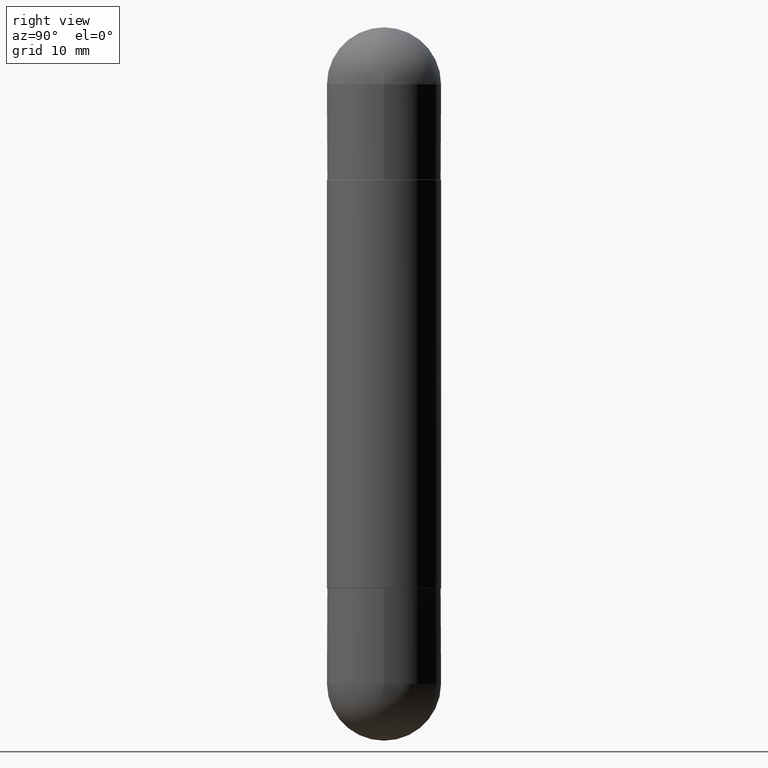
[diagram: clean part render]
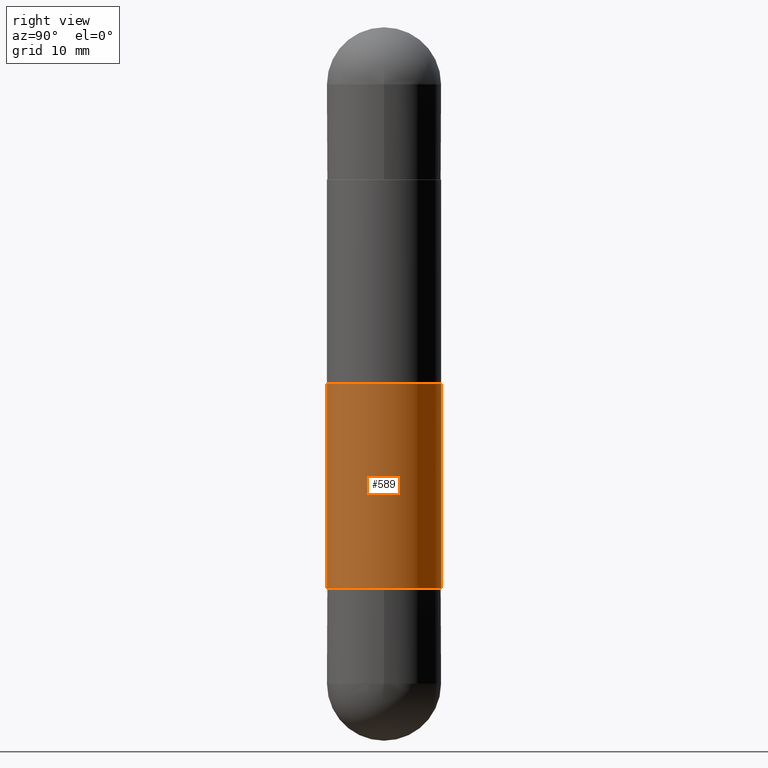
[diagram: same view with one face highlighted and labeled with its STEP entity id]
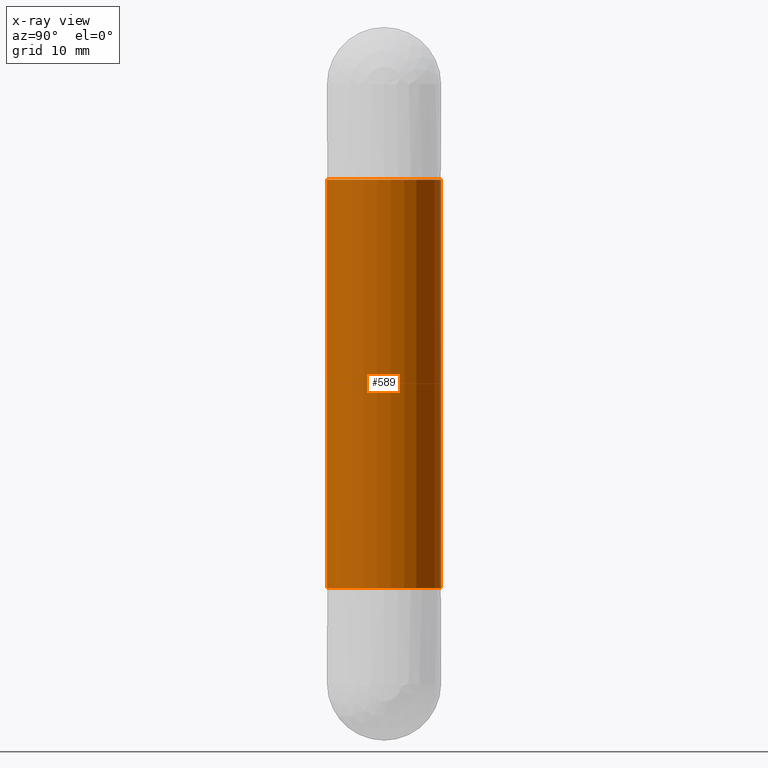
[diagram: x-ray of the same camera — body ghosted, the highlighted face saturated]
A machine part, right view. The second image highlights one B-rep face of the part: STEP entity #589.
The next image is the same camera in x-ray: the body ghosted, the highlighted face saturated — about 0% of this face is hidden behind the body in this view.
In plain terms, the highlighted cylindrical surface (partial cylindrical patch) has radius 5.9995 mm, axis along (-0, 0, -1).
Its self-contained STEP definition (entity closure, byte-faithful):
#24 = DIRECTION ( 'NONE',  ( -6.982962677686265922E-15, -1.000000000000000000, 3.469747663417773058E-15 ) ) ;
#27 = DIRECTION ( 'NONE',  ( -6.982962677686265922E-15, -1.000000000000000000, -3.469747663417773058E-15 ) ) ;
#42 = VECTOR ( 'NONE', #623, 39.37007874015748143 ) ;
#45 = VERTEX_POINT ( 'NONE', #324 ) ;
#86 = CARTESIAN_POINT ( 'NONE',  ( 5.675629363082290113E-29, -8.110457333470714388E-15, -0.6309000000000001274 ) ) ;
#90 = CARTESIAN_POINT ( 'NONE',  ( 1.620449627073673141E-15, 0.2361999999999921385, -2.321900000000000297 ) ) ;
#116 = CARTESIAN_POINT ( 'NONE',  ( -1.649375784469497117E-15, -0.2362000000000001598, -2.952800000000000757 ) ) ;
#135 = DIRECTION ( 'NONE',  ( -6.982962677686265922E-15, -1.000000000000000000, -4.626330217890366181E-15 ) ) ;
#151 = VERTEX_POINT ( 'NONE', #90 ) ;
#198 = CARTESIAN_POINT ( 'NONE',  ( 1.620449627073694243E-15, 0.2361999999999921385, -0.6308999999999992392 ) ) ;
#207 = EDGE_CURVE ( 'NONE', #513, #151, #474, .T. ) ;
#251 = LINE ( 'NONE', #116, #42 ) ;
#257 = FACE_OUTER_BOUND ( 'NONE', #347, .T. ) ;
#307 = AXIS2_PLACEMENT_3D ( 'NONE', #340, #534, #24 ) ;
#324 = CARTESIAN_POINT ( 'NONE',  ( -1.649375784469441108E-15, -0.2362000000000084032, -0.6309000000000009045 ) ) ;
#338 = VERTEX_POINT ( 'NONE', #620 ) ;
#340 = CARTESIAN_POINT ( 'NONE',  ( 5.675629363082290113E-29, -8.110457333470714388E-15, -2.321899999999999409 ) ) ;
#347 = EDGE_LOOP ( 'NONE', ( #511, #688, #407, #598 ) ) ;
#348 = VECTOR ( 'NONE', #657, 39.37007874015748143 ) ;
#390 = AXIS2_PLACEMENT_3D ( 'NONE', #767, #704, #135 ) ;
#407 = ORIENTED_EDGE ( 'NONE', *, *, #421, .T. ) ;
#421 = EDGE_CURVE ( 'NONE', #45, #338, #251, .T. ) ;
#474 = LINE ( 'NONE', #730, #348 ) ;
#494 = AXIS2_PLACEMENT_3D ( 'NONE', #86, #656, #27 ) ;
#511 = ORIENTED_EDGE ( 'NONE', *, *, #207, .F. ) ;
#513 = VERTEX_POINT ( 'NONE', #198 ) ;
#520 = CYLINDRICAL_SURFACE ( 'NONE', #390, 0.2362000000000001598 ) ;
#534 = DIRECTION ( 'NONE',  ( -2.444390095646794193E-29, 3.493026113730442947E-15, 1.000000000000000000 ) ) ;
#589 = ADVANCED_FACE ( 'NONE', ( #257 ), #520, .T. ) ;
#598 = ORIENTED_EDGE ( 'NONE', *, *, #766, .T. ) ;
#605 = CIRCLE ( 'NONE', #307, 0.2362000000000002709 ) ;
#620 = CARTESIAN_POINT ( 'NONE',  ( -1.649375784469441108E-15, -0.2362000000000084032, -2.321899999999998965 ) ) ;
#623 = DIRECTION ( 'NONE',  ( -2.444390095646794193E-29, 3.493026113730442947E-15, -1.000000000000000000 ) ) ;
#635 = EDGE_CURVE ( 'NONE', #45, #513, #698, .T. ) ;
#656 = DIRECTION ( 'NONE',  ( 2.444390095646794193E-29, -3.493026113730442947E-15, 1.000000000000000000 ) ) ;
#657 = DIRECTION ( 'NONE',  ( -2.444390095646794193E-29, 3.493026113730442947E-15, -1.000000000000000000 ) ) ;
#688 = ORIENTED_EDGE ( 'NONE', *, *, #635, .F. ) ;
#698 = CIRCLE ( 'NONE', #494, 0.2362000000000002709 ) ;
#704 = DIRECTION ( 'NONE',  ( -2.444390095646794193E-29, 3.493026113730442947E-15, -1.000000000000000000 ) ) ;
#730 = CARTESIAN_POINT ( 'NONE',  ( 1.620449627073636656E-15, 0.2362000000000001598, -2.952799999999998537 ) ) ;
#766 = EDGE_CURVE ( 'NONE', #338, #151, #605, .T. ) ;
#767 = CARTESIAN_POINT ( 'NONE',  ( 0.000000000000000000, 0.000000000000000000, -2.952799999999999869 ) ) ;